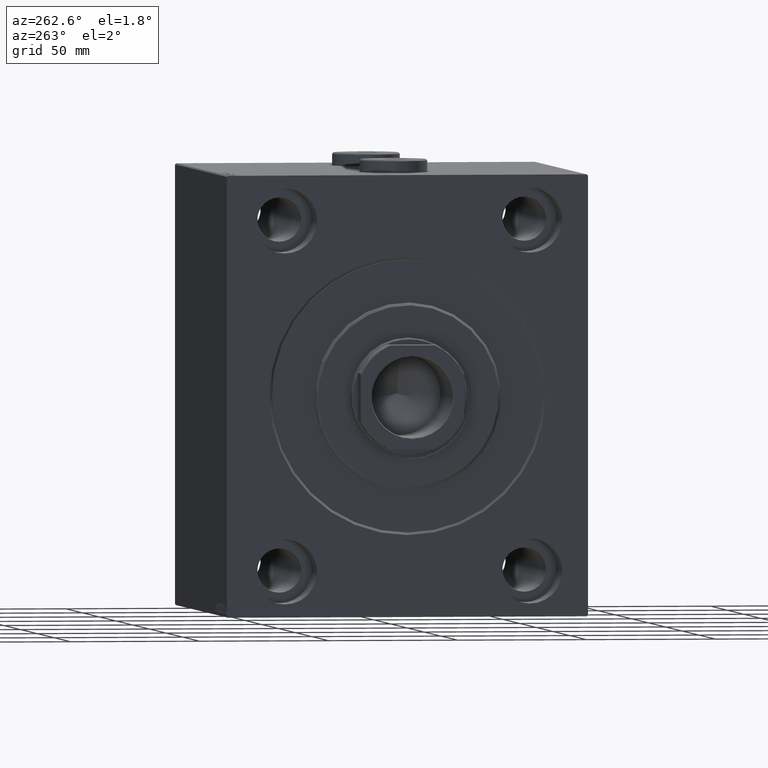
[diagram: clean part render]
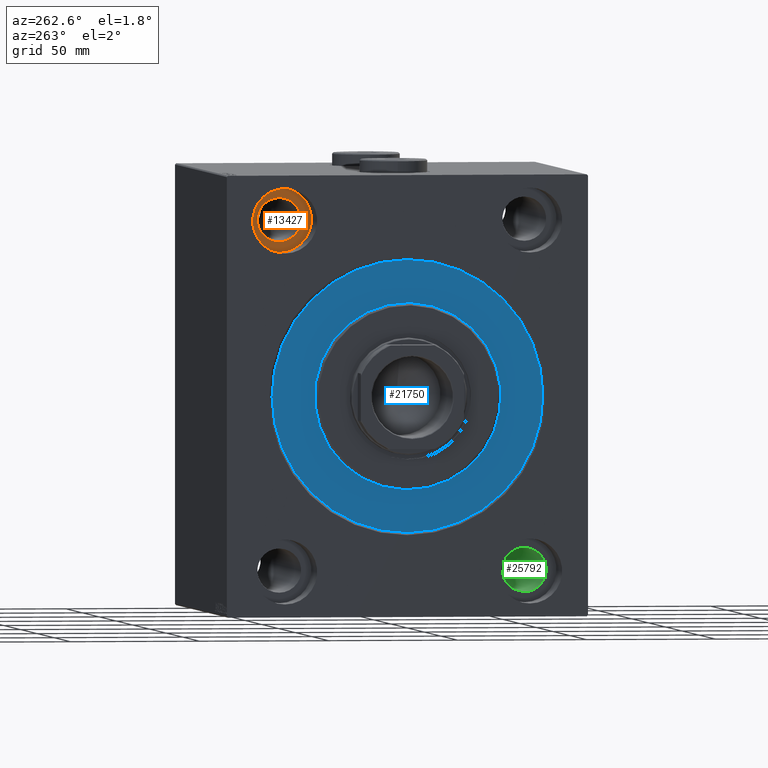
[diagram: same view with three faces highlighted in distinct colors, each labeled with its STEP entity id]
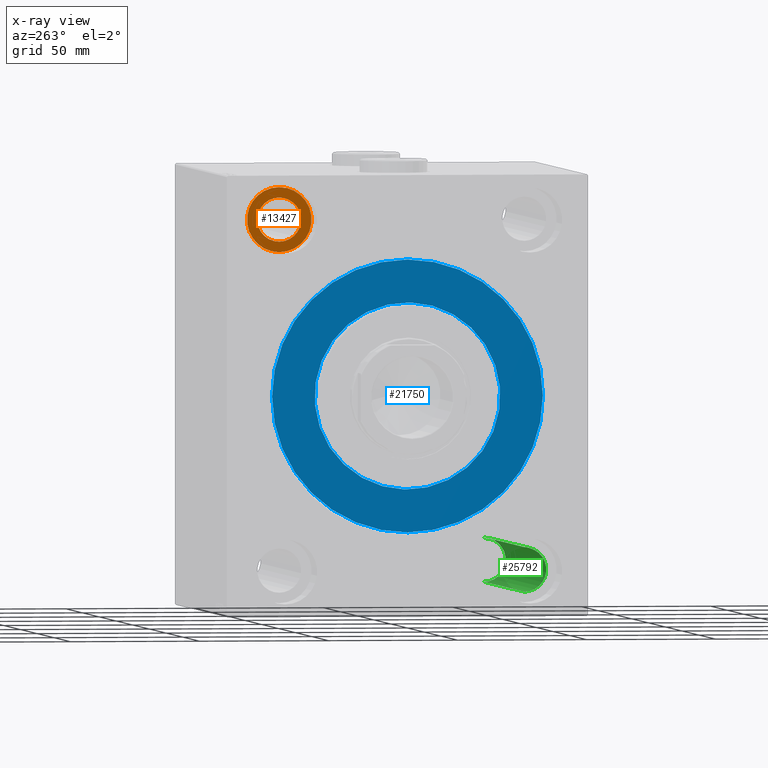
[diagram: x-ray of the same camera — body ghosted, the three highlighted faces saturated]
A machine part, auxiliary view with three faces highlighted in distinct colors.
The next image is the same camera in x-ray (body ghosted, the three faces saturated) — at least one of them is partly hidden behind the body in this view.
Their STEP definitions:

[orange] entity #13427 — the highlighted planar face has unit normal (-1, 0, 0).
#759 = EDGE_CURVE ( 'NONE', #3531, #23284, #37812, .T. ) ;
#1076 = DIRECTION ( 'NONE',  ( -1.000000000000000000, 0.000000000000000000, 0.000000000000000000 ) ) ;
#1227 = CARTESIAN_POINT ( 'NONE',  ( 17.00000000000000000, 47.50000000000000711, 67.50000000000000000 ) ) ;
#1429 = CARTESIAN_POINT ( 'NONE',  ( 17.00000000000000000, 47.50000000000000711, 80.00000000000001421 ) ) ;
#2206 = ORIENTED_EDGE ( 'NONE', *, *, #17011, .F. ) ;
#3531 = VERTEX_POINT ( 'NONE', #1429 ) ;
#3552 = ORIENTED_EDGE ( 'NONE', *, *, #23528, .T. ) ;
#5575 = AXIS2_PLACEMENT_3D ( 'NONE', #40890, #37233, #26667 ) ;
#7842 = CIRCLE ( 'NONE', #9301, 12.50000000000001066 ) ;
#7938 = CARTESIAN_POINT ( 'NONE',  ( 17.00000000000001421, 47.50000000000000711, 67.50000000000000000 ) ) ;
#8100 = CIRCLE ( 'NONE', #33728, 8.500000000000007105 ) ;
#9301 = AXIS2_PLACEMENT_3D ( 'NONE', #1227, #36078, #14555 ) ;
#9681 = FACE_OUTER_BOUND ( 'NONE', #22400, .T. ) ;
#10317 = AXIS2_PLACEMENT_3D ( 'NONE', #7938, #1076, #17840 ) ;
#13427 = ADVANCED_FACE ( 'NONE', ( #24341, #9681 ), #16794, .T. ) ;
#14555 = DIRECTION ( 'NONE',  ( 0.000000000000000000, 0.000000000000000000, 1.000000000000000000 ) ) ;
#16021 = VERTEX_POINT ( 'NONE', #21220 ) ;
#16794 = PLANE ( 'NONE',  #20636 ) ;
#17011 = EDGE_CURVE ( 'NONE', #21183, #16021, #36634, .T. ) ;
#17716 = ORIENTED_EDGE ( 'NONE', *, *, #759, .T. ) ;
#17840 = DIRECTION ( 'NONE',  ( 0.000000000000000000, 0.000000000000000000, 1.000000000000000000 ) ) ;
#19194 = CARTESIAN_POINT ( 'NONE',  ( 17.00000000000001421, 47.50000000000000711, 67.50000000000000000 ) ) ;
#20465 = DIRECTION ( 'NONE',  ( -1.000000000000000000, 0.000000000000000000, 0.000000000000000000 ) ) ;
#20636 = AXIS2_PLACEMENT_3D ( 'NONE', #23662, #20465, #37431 ) ;
#21183 = VERTEX_POINT ( 'NONE', #34148 ) ;
#21220 = CARTESIAN_POINT ( 'NONE',  ( 17.00000000000001421, 47.50000000000000711, 59.00000000000000000 ) ) ;
#22400 = EDGE_LOOP ( 'NONE', ( #17716, #3552 ) ) ;
#23284 = VERTEX_POINT ( 'NONE', #37270 ) ;
#23528 = EDGE_CURVE ( 'NONE', #23284, #3531, #7842, .T. ) ;
#23662 = CARTESIAN_POINT ( 'NONE',  ( 17.00000000000000000, 0.000000000000000000, 0.000000000000000000 ) ) ;
#24341 = FACE_BOUND ( 'NONE', #30865, .T. ) ;
#26667 = DIRECTION ( 'NONE',  ( 0.000000000000000000, 0.000000000000000000, 1.000000000000000000 ) ) ;
#30865 = EDGE_LOOP ( 'NONE', ( #2206, #32155 ) ) ;
#32155 = ORIENTED_EDGE ( 'NONE', *, *, #38286, .F. ) ;
#33148 = DIRECTION ( 'NONE',  ( -1.000000000000000000, 0.000000000000000000, 0.000000000000000000 ) ) ;
#33366 = DIRECTION ( 'NONE',  ( 0.000000000000000000, 0.000000000000000000, 1.000000000000000000 ) ) ;
#33728 = AXIS2_PLACEMENT_3D ( 'NONE', #19194, #33148, #33366 ) ;
#34148 = CARTESIAN_POINT ( 'NONE',  ( 17.00000000000001421, 47.50000000000000711, 76.00000000000001421 ) ) ;
#36078 = DIRECTION ( 'NONE',  ( -1.000000000000000000, 0.000000000000000000, 0.000000000000000000 ) ) ;
#36634 = CIRCLE ( 'NONE', #10317, 8.500000000000007105 ) ;
#37233 = DIRECTION ( 'NONE',  ( -1.000000000000000000, 0.000000000000000000, 0.000000000000000000 ) ) ;
#37270 = CARTESIAN_POINT ( 'NONE',  ( 17.00000000000000000, 47.50000000000000711, 55.00000000000000000 ) ) ;
#37431 = DIRECTION ( 'NONE',  ( 0.000000000000000000, 0.000000000000000000, 1.000000000000000000 ) ) ;
#37812 = CIRCLE ( 'NONE', #5575, 12.50000000000001066 ) ;
#38286 = EDGE_CURVE ( 'NONE', #16021, #21183, #8100, .T. ) ;
#40890 = CARTESIAN_POINT ( 'NONE',  ( 17.00000000000000000, 47.50000000000000711, 67.50000000000000000 ) ) ;

[blue] entity #21750 — the highlighted planar face has unit normal (1, 0, -0).
#451 = DIRECTION ( 'NONE',  ( 0.000000000000000000, 0.000000000000000000, 1.000000000000000000 ) ) ;
#490 = AXIS2_PLACEMENT_3D ( 'NONE', #4567, #26094, #8438 ) ;
#610 = DIRECTION ( 'NONE',  ( 0.000000000000000000, 0.000000000000000000, 1.000000000000000000 ) ) ;
#1217 = CIRCLE ( 'NONE', #40019, 52.49999999999999289 ) ;
#1342 = EDGE_CURVE ( 'NONE', #33520, #37998, #4140, .T. ) ;
#3054 = CIRCLE ( 'NONE', #5214, 52.49999999999999289 ) ;
#4140 = CIRCLE ( 'NONE', #490, 36.00000000000000000 ) ;
#4159 = ORIENTED_EDGE ( 'NONE', *, *, #1342, .F. ) ;
#4567 = CARTESIAN_POINT ( 'NONE',  ( 0.000000000000000000, 0.000000000000000000, 0.000000000000000000 ) ) ;
#5214 = AXIS2_PLACEMENT_3D ( 'NONE', #35302, #31840, #451 ) ;
#6257 = CIRCLE ( 'NONE', #8422, 36.00000000000000000 ) ;
#6818 = ORIENTED_EDGE ( 'NONE', *, *, #43854, .F. ) ;
#8422 = AXIS2_PLACEMENT_3D ( 'NONE', #43474, #26288, #32934 ) ;
#8438 = DIRECTION ( 'NONE',  ( 0.000000000000000000, 0.000000000000000000, -1.000000000000000000 ) ) ;
#10432 = DIRECTION ( 'NONE',  ( -1.000000000000000000, 0.000000000000000000, 0.000000000000000000 ) ) ;
#12606 = CARTESIAN_POINT ( 'NONE',  ( 0.000000000000000000, 4.408728476930470856E-15, -36.00000000000000000 ) ) ;
#14175 = DIRECTION ( 'NONE',  ( -1.000000000000000000, 0.000000000000000000, 0.000000000000000000 ) ) ;
#14970 = CARTESIAN_POINT ( 'NONE',  ( 0.000000000000000000, 0.000000000000000000, -52.49999999999999289 ) ) ;
#15838 = ORIENTED_EDGE ( 'NONE', *, *, #22522, .F. ) ;
#18778 = EDGE_CURVE ( 'NONE', #37998, #33520, #6257, .T. ) ;
#19521 = AXIS2_PLACEMENT_3D ( 'NONE', #25127, #14175, #610 ) ;
#21750 = ADVANCED_FACE ( 'NONE', ( #42329, #25343 ), #42984, .F. ) ;
#22522 = EDGE_CURVE ( 'NONE', #22537, #26239, #1217, .T. ) ;
#22537 = VERTEX_POINT ( 'NONE', #24404 ) ;
#24404 = CARTESIAN_POINT ( 'NONE',  ( 0.000000000000000000, 6.429395695523603167E-15, 52.49999999999999289 ) ) ;
#25127 = CARTESIAN_POINT ( 'NONE',  ( 0.000000000000000000, 0.000000000000000000, 0.000000000000000000 ) ) ;
#25343 = FACE_OUTER_BOUND ( 'NONE', #42702, .T. ) ;
#26094 = DIRECTION ( 'NONE',  ( 1.000000000000000000, -0.000000000000000000, 0.000000000000000000 ) ) ;
#26239 = VERTEX_POINT ( 'NONE', #14970 ) ;
#26288 = DIRECTION ( 'NONE',  ( 1.000000000000000000, -0.000000000000000000, 0.000000000000000000 ) ) ;
#31084 = CARTESIAN_POINT ( 'NONE',  ( 0.000000000000000000, 0.000000000000000000, 36.00000000000000000 ) ) ;
#31840 = DIRECTION ( 'NONE',  ( -1.000000000000000000, 0.000000000000000000, 0.000000000000000000 ) ) ;
#32934 = DIRECTION ( 'NONE',  ( 0.000000000000000000, 0.000000000000000000, -1.000000000000000000 ) ) ;
#33520 = VERTEX_POINT ( 'NONE', #31084 ) ;
#34721 = CARTESIAN_POINT ( 'NONE',  ( 0.000000000000000000, 0.000000000000000000, 0.000000000000000000 ) ) ;
#35302 = CARTESIAN_POINT ( 'NONE',  ( 0.000000000000000000, 0.000000000000000000, 0.000000000000000000 ) ) ;
#37998 = VERTEX_POINT ( 'NONE', #12606 ) ;
#40019 = AXIS2_PLACEMENT_3D ( 'NONE', #34721, #10432, #45028 ) ;
#42329 = FACE_BOUND ( 'NONE', #43511, .T. ) ;
#42384 = ORIENTED_EDGE ( 'NONE', *, *, #18778, .F. ) ;
#42702 = EDGE_LOOP ( 'NONE', ( #6818, #15838 ) ) ;
#42984 = PLANE ( 'NONE',  #19521 ) ;
#43474 = CARTESIAN_POINT ( 'NONE',  ( 0.000000000000000000, 0.000000000000000000, 0.000000000000000000 ) ) ;
#43511 = EDGE_LOOP ( 'NONE', ( #4159, #42384 ) ) ;
#43854 = EDGE_CURVE ( 'NONE', #26239, #22537, #3054, .T. ) ;
#45028 = DIRECTION ( 'NONE',  ( 0.000000000000000000, 0.000000000000000000, 1.000000000000000000 ) ) ;

[green] entity #25792 — the highlighted cylindrical surface (edge-blend (fillet) strip) has radius 8.5 mm, axis along (-1, -0, -0).
#267 = DIRECTION ( 'NONE',  ( 0.000000000000000000, 0.000000000000000000, -1.000000000000000000 ) ) ;
#2018 = AXIS2_PLACEMENT_3D ( 'NONE', #8801, #15933, #22816 ) ;
#2156 = EDGE_CURVE ( 'NONE', #40087, #18739, #3692, .T. ) ;
#3692 = LINE ( 'NONE', #11021, #10776 ) ;
#3755 = CARTESIAN_POINT ( 'NONE',  ( 138.0000000000000000, -47.49999999999999289, -76.00000000000000000 ) ) ;
#4077 = EDGE_CURVE ( 'NONE', #18739, #45017, #44491, .T. ) ;
#6323 = EDGE_CURVE ( 'NONE', #40087, #30654, #45287, .T. ) ;
#6386 = CYLINDRICAL_SURFACE ( 'NONE', #30599, 8.499999999999992895 ) ;
#8801 = CARTESIAN_POINT ( 'NONE',  ( 17.00000000000001421, -47.49999999999999289, -67.50000000000000000 ) ) ;
#10584 = CARTESIAN_POINT ( 'NONE',  ( 138.0000000000000000, -47.49999999999999289, -67.50000000000000000 ) ) ;
#10776 = VECTOR ( 'NONE', #24995, 1000.000000000000000 ) ;
#11021 = CARTESIAN_POINT ( 'NONE',  ( 155.0000000000000284, -47.49999999999999289, -76.00000000000000000 ) ) ;
#12830 = DIRECTION ( 'NONE',  ( 0.000000000000000000, 0.000000000000000000, 1.000000000000000000 ) ) ;
#15547 = CARTESIAN_POINT ( 'NONE',  ( 17.00000000000001421, -47.49999999999999289, -76.00000000000000000 ) ) ;
#15933 = DIRECTION ( 'NONE',  ( -1.000000000000000000, 0.000000000000000000, 0.000000000000000000 ) ) ;
#17041 = CARTESIAN_POINT ( 'NONE',  ( 138.0000000000000000, -47.49999999999999289, -59.00000000000001421 ) ) ;
#17555 = DIRECTION ( 'NONE',  ( -1.000000000000000000, -0.000000000000000000, -0.000000000000000000 ) ) ;
#17671 = ORIENTED_EDGE ( 'NONE', *, *, #2156, .T. ) ;
#18739 = VERTEX_POINT ( 'NONE', #15547 ) ;
#18972 = ORIENTED_EDGE ( 'NONE', *, *, #6323, .F. ) ;
#22816 = DIRECTION ( 'NONE',  ( 0.000000000000000000, 0.000000000000000000, 1.000000000000000000 ) ) ;
#24639 = LINE ( 'NONE', #35627, #39564 ) ;
#24995 = DIRECTION ( 'NONE',  ( -1.000000000000000000, -0.000000000000000000, -0.000000000000000000 ) ) ;
#25792 = ADVANCED_FACE ( 'NONE', ( #30909 ), #6386, .F. ) ;
#27758 = DIRECTION ( 'NONE',  ( -1.000000000000000000, -0.000000000000000000, -0.000000000000000000 ) ) ;
#29404 = EDGE_LOOP ( 'NONE', ( #18972, #17671, #41495, #38168 ) ) ;
#30599 = AXIS2_PLACEMENT_3D ( 'NONE', #34354, #44207, #12830 ) ;
#30654 = VERTEX_POINT ( 'NONE', #17041 ) ;
#30909 = FACE_OUTER_BOUND ( 'NONE', #29404, .T. ) ;
#34354 = CARTESIAN_POINT ( 'NONE',  ( 155.0000000000000284, -47.49999999999999289, -67.50000000000000000 ) ) ;
#35627 = CARTESIAN_POINT ( 'NONE',  ( 155.0000000000000284, -47.49999999999999289, -59.00000000000001421 ) ) ;
#36399 = EDGE_CURVE ( 'NONE', #30654, #45017, #24639, .T. ) ;
#38168 = ORIENTED_EDGE ( 'NONE', *, *, #36399, .F. ) ;
#38867 = CARTESIAN_POINT ( 'NONE',  ( 17.00000000000001421, -47.49999999999999289, -59.00000000000001421 ) ) ;
#39564 = VECTOR ( 'NONE', #17555, 1000.000000000000000 ) ;
#40087 = VERTEX_POINT ( 'NONE', #3755 ) ;
#41495 = ORIENTED_EDGE ( 'NONE', *, *, #4077, .T. ) ;
#43792 = AXIS2_PLACEMENT_3D ( 'NONE', #10584, #27758, #267 ) ;
#44207 = DIRECTION ( 'NONE',  ( -1.000000000000000000, -0.000000000000000000, -0.000000000000000000 ) ) ;
#44491 = CIRCLE ( 'NONE', #2018, 8.499999999999992895 ) ;
#45017 = VERTEX_POINT ( 'NONE', #38867 ) ;
#45287 = CIRCLE ( 'NONE', #43792, 8.499999999999992895 ) ;